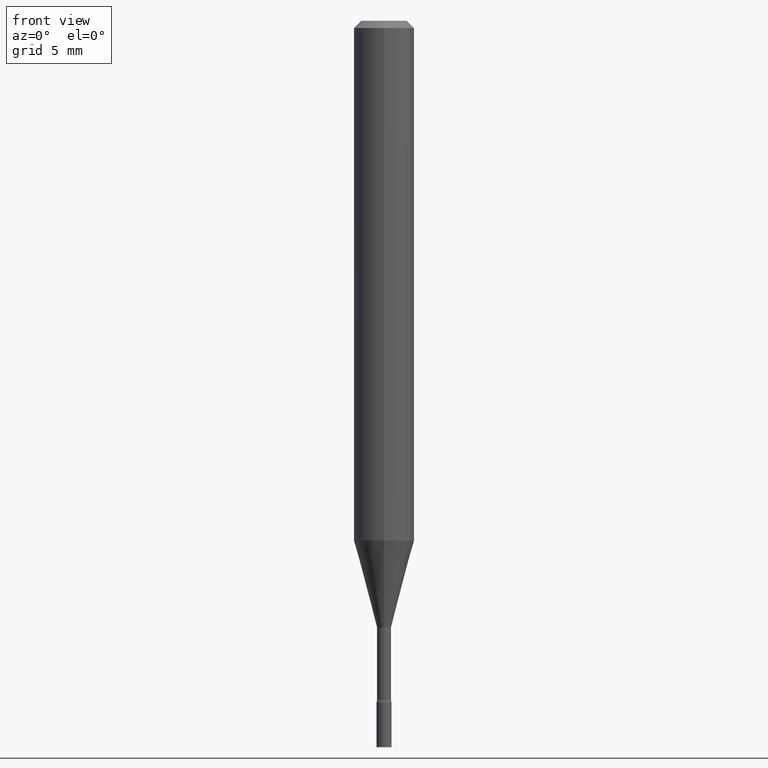
[diagram: clean part render]
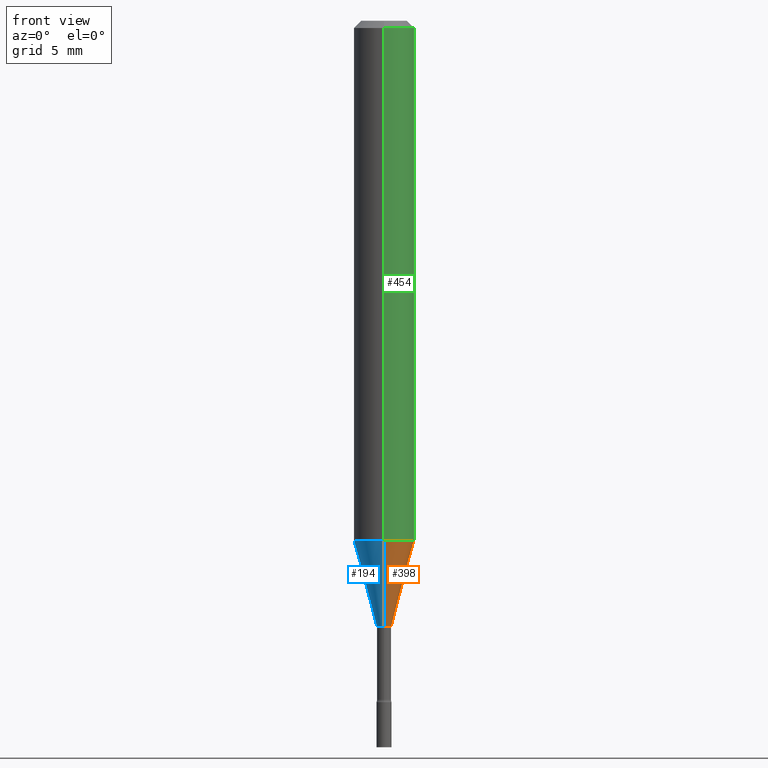
[diagram: same view with three faces highlighted in distinct colors, each labeled with its STEP entity id]
A machine part, front view with three faces highlighted in distinct colors.
Their STEP definitions:

[orange] entity #398 — the highlighted conical surface has half-angle 15 deg.
#9 = CARTESIAN_POINT ( 'NONE',  ( -4.364351673553655384E-16, -0.06250000000000376088, -1.073048163777072794 ) ) ;
#24 = DIRECTION ( 'NONE',  ( -6.982962677686265922E-15, -1.000000000000000000, 4.370956789862821150E-15 ) ) ;
#35 = DIRECTION ( 'NONE',  ( -2.445462235734121314E-29, 3.491490748102966351E-15, 1.000000000000000000 ) ) ;
#42 = CARTESIAN_POINT ( 'NONE',  ( 4.440892098500886486E-16, 0.06249999999999623218, -1.073048163777073238 ) ) ;
#50 = EDGE_CURVE ( 'NONE', #167, #186, #206, .T. ) ;
#66 = AXIS2_PLACEMENT_3D ( 'NONE', #111, #238, #313 ) ;
#75 = CIRCLE ( 'NONE', #288, 0.06250000000000000000 ) ;
#84 = EDGE_LOOP ( 'NONE', ( #506, #161, #163, #282 ) ) ;
#93 = DIRECTION ( 'NONE',  ( -2.445462235734121314E-29, 3.491490748102966351E-15, 1.000000000000000000 ) ) ;
#97 = CARTESIAN_POINT ( 'NONE',  ( -1.051711872097511524E-16, -0.01506111260566834510, -1.250092501787273269 ) ) ;
#111 = CARTESIAN_POINT ( 'NONE',  ( 3.057054004295166531E-29, -4.364686404263155979E-15, -1.250092501787273269 ) ) ;
#117 = VERTEX_POINT ( 'NONE', #42 ) ;
#139 = CARTESIAN_POINT ( 'NONE',  ( 2.755524256971568781E-16, 0.01506111260565961597, -1.250092501787273269 ) ) ;
#143 = CARTESIAN_POINT ( 'NONE',  ( 3.057054004295166531E-29, -4.364686404263155979E-15, -1.250092501787273269 ) ) ;
#161 = ORIENTED_EDGE ( 'NONE', *, *, #228, .T. ) ;
#163 = ORIENTED_EDGE ( 'NONE', *, *, #436, .F. ) ;
#167 = VERTEX_POINT ( 'NONE', #97 ) ;
#177 = EDGE_CURVE ( 'NONE', #167, #214, #274, .T. ) ;
#186 = VERTEX_POINT ( 'NONE', #9 ) ;
#189 = DIRECTION ( 'NONE',  ( 1.839019923739599526E-15, 0.2588190451025248473, 0.9659258262890673130 ) ) ;
#201 = FACE_OUTER_BOUND ( 'NONE', #84, .T. ) ;
#206 = LINE ( 'NONE', #209, #245 ) ;
#209 = CARTESIAN_POINT ( 'NONE',  ( -1.051711872097511524E-16, -0.01506111260566834510, -1.250092501787273269 ) ) ;
#214 = VERTEX_POINT ( 'NONE', #139 ) ;
#223 = LINE ( 'NONE', #460, #440 ) ;
#228 = EDGE_CURVE ( 'NONE', #214, #117, #223, .T. ) ;
#238 = DIRECTION ( 'NONE',  ( -2.445462235734121314E-29, 3.491490748102966351E-15, 1.000000000000000000 ) ) ;
#245 = VECTOR ( 'NONE', #449, 39.37007874015749564 ) ;
#274 = CIRCLE ( 'NONE', #303, 0.01506111260566398054 ) ;
#282 = ORIENTED_EDGE ( 'NONE', *, *, #50, .F. ) ;
#288 = AXIS2_PLACEMENT_3D ( 'NONE', #512, #35, #24 ) ;
#299 = DIRECTION ( 'NONE',  ( -6.982962677686265922E-15, -1.000000000000000000, 0.000000000000000000 ) ) ;
#303 = AXIS2_PLACEMENT_3D ( 'NONE', #143, #93, #299 ) ;
#313 = DIRECTION ( 'NONE',  ( -6.982962677686265922E-15, -1.000000000000000000, 0.000000000000000000 ) ) ;
#398 = ADVANCED_FACE ( 'NONE', ( #201 ), #515, .T. ) ;
#436 = EDGE_CURVE ( 'NONE', #186, #117, #75, .T. ) ;
#440 = VECTOR ( 'NONE', #189, 39.37007874015747433 ) ;
#449 = DIRECTION ( 'NONE',  ( -1.807323732225328562E-15, -0.2588190451025179639, 0.9659258262890689783 ) ) ;
#460 = CARTESIAN_POINT ( 'NONE',  ( 1.070156415442247132E-16, 0.01506111260565961597, -1.250092501787273269 ) ) ;
#506 = ORIENTED_EDGE ( 'NONE', *, *, #177, .T. ) ;
#512 = CARTESIAN_POINT ( 'NONE',  ( 2.624098761640674456E-29, -3.746537736096526862E-15, -1.073048163777073016 ) ) ;
#515 = CONICAL_SURFACE ( 'NONE', #66, 0.01506111260566398054, 0.2617993877991501295 ) ;

[blue] entity #194 — the highlighted conical surface has half-angle 15 deg.
#9 = CARTESIAN_POINT ( 'NONE',  ( -4.364351673553655384E-16, -0.06250000000000376088, -1.073048163777072794 ) ) ;
#29 = AXIS2_PLACEMENT_3D ( 'NONE', #128, #406, #169 ) ;
#34 = EDGE_CURVE ( 'NONE', #214, #167, #302, .T. ) ;
#36 = CONICAL_SURFACE ( 'NONE', #295, 0.01506111260566398054, 0.2617993877991501295 ) ;
#42 = CARTESIAN_POINT ( 'NONE',  ( 4.440892098500886486E-16, 0.06249999999999623218, -1.073048163777073238 ) ) ;
#50 = EDGE_CURVE ( 'NONE', #167, #186, #206, .T. ) ;
#58 = EDGE_LOOP ( 'NONE', ( #190, #85, #321, #257 ) ) ;
#85 = ORIENTED_EDGE ( 'NONE', *, *, #34, .T. ) ;
#90 = DIRECTION ( 'NONE',  ( -6.982962677686265922E-15, -1.000000000000000000, 0.000000000000000000 ) ) ;
#94 = CARTESIAN_POINT ( 'NONE',  ( 3.057054004295166531E-29, -4.364686404263155979E-15, -1.250092501787273269 ) ) ;
#97 = CARTESIAN_POINT ( 'NONE',  ( -1.051711872097511524E-16, -0.01506111260566834510, -1.250092501787273269 ) ) ;
#112 = EDGE_CURVE ( 'NONE', #117, #186, #358, .T. ) ;
#117 = VERTEX_POINT ( 'NONE', #42 ) ;
#128 = CARTESIAN_POINT ( 'NONE',  ( 2.624098761640674456E-29, -3.746537736096526862E-15, -1.073048163777073016 ) ) ;
#139 = CARTESIAN_POINT ( 'NONE',  ( 2.755524256971568781E-16, 0.01506111260565961597, -1.250092501787273269 ) ) ;
#142 = AXIS2_PLACEMENT_3D ( 'NONE', #244, #441, #90 ) ;
#167 = VERTEX_POINT ( 'NONE', #97 ) ;
#169 = DIRECTION ( 'NONE',  ( -6.982962677686265922E-15, -1.000000000000000000, 4.370956789862821150E-15 ) ) ;
#186 = VERTEX_POINT ( 'NONE', #9 ) ;
#189 = DIRECTION ( 'NONE',  ( 1.839019923739599526E-15, 0.2588190451025248473, 0.9659258262890673130 ) ) ;
#190 = ORIENTED_EDGE ( 'NONE', *, *, #228, .F. ) ;
#194 = ADVANCED_FACE ( 'NONE', ( #306 ), #36, .T. ) ;
#206 = LINE ( 'NONE', #209, #245 ) ;
#209 = CARTESIAN_POINT ( 'NONE',  ( -1.051711872097511524E-16, -0.01506111260566834510, -1.250092501787273269 ) ) ;
#214 = VERTEX_POINT ( 'NONE', #139 ) ;
#223 = LINE ( 'NONE', #460, #440 ) ;
#228 = EDGE_CURVE ( 'NONE', #214, #117, #223, .T. ) ;
#244 = CARTESIAN_POINT ( 'NONE',  ( 3.057054004295166531E-29, -4.364686404263155979E-15, -1.250092501787273269 ) ) ;
#245 = VECTOR ( 'NONE', #449, 39.37007874015749564 ) ;
#257 = ORIENTED_EDGE ( 'NONE', *, *, #112, .F. ) ;
#266 = DIRECTION ( 'NONE',  ( -2.445462235734121314E-29, 3.491490748102966351E-15, 1.000000000000000000 ) ) ;
#272 = DIRECTION ( 'NONE',  ( -6.982962677686265922E-15, -1.000000000000000000, 0.000000000000000000 ) ) ;
#295 = AXIS2_PLACEMENT_3D ( 'NONE', #94, #266, #272 ) ;
#302 = CIRCLE ( 'NONE', #142, 0.01506111260566398054 ) ;
#306 = FACE_OUTER_BOUND ( 'NONE', #58, .T. ) ;
#321 = ORIENTED_EDGE ( 'NONE', *, *, #50, .T. ) ;
#358 = CIRCLE ( 'NONE', #29, 0.06250000000000000000 ) ;
#406 = DIRECTION ( 'NONE',  ( -2.445462235734121314E-29, 3.491490748102966351E-15, 1.000000000000000000 ) ) ;
#440 = VECTOR ( 'NONE', #189, 39.37007874015747433 ) ;
#441 = DIRECTION ( 'NONE',  ( -2.445462235734121314E-29, 3.491490748102966351E-15, 1.000000000000000000 ) ) ;
#449 = DIRECTION ( 'NONE',  ( -1.807323732225328562E-15, -0.2588190451025179639, 0.9659258262890689783 ) ) ;
#460 = CARTESIAN_POINT ( 'NONE',  ( 1.070156415442247132E-16, 0.01506111260565961597, -1.250092501787273269 ) ) ;

[green] entity #454 — the highlighted cylindrical surface (edge-blend (fillet) strip) has radius 1.5875 mm, axis along (-0, 0, 1).
#9 = CARTESIAN_POINT ( 'NONE',  ( -4.364351673553655384E-16, -0.06250000000000376088, -1.073048163777072794 ) ) ;
#24 = DIRECTION ( 'NONE',  ( -6.982962677686265922E-15, -1.000000000000000000, 4.370956789862821150E-15 ) ) ;
#35 = DIRECTION ( 'NONE',  ( -2.445462235734121314E-29, 3.491490748102966351E-15, 1.000000000000000000 ) ) ;
#42 = CARTESIAN_POINT ( 'NONE',  ( 4.440892098500886486E-16, 0.06249999999999623218, -1.073048163777073238 ) ) ;
#71 = CARTESIAN_POINT ( 'NONE',  ( 0.000000000000000000, 0.000000000000000000, 0.000000000000000000 ) ) ;
#75 = CIRCLE ( 'NONE', #288, 0.06250000000000000000 ) ;
#88 = VECTOR ( 'NONE', #105, 39.37007874015748143 ) ;
#105 = DIRECTION ( 'NONE',  ( -2.445462235734121314E-29, 3.491490748102966351E-15, 1.000000000000000000 ) ) ;
#117 = VERTEX_POINT ( 'NONE', #42 ) ;
#124 = CARTESIAN_POINT ( 'NONE',  ( 3.668193353601189100E-31, -5.237236122154459880E-17, -0.01500000000000003067 ) ) ;
#134 = ORIENTED_EDGE ( 'NONE', *, *, #384, .F. ) ;
#137 = LINE ( 'NONE', #400, #373 ) ;
#144 = AXIS2_PLACEMENT_3D ( 'NONE', #124, #437, #439 ) ;
#162 = FACE_OUTER_BOUND ( 'NONE', #270, .T. ) ;
#186 = VERTEX_POINT ( 'NONE', #9 ) ;
#196 = DIRECTION ( 'NONE',  ( -2.445462235734121314E-29, 3.491490748102966351E-15, 1.000000000000000000 ) ) ;
#229 = CARTESIAN_POINT ( 'NONE',  ( 4.440892098500889444E-16, 0.06249999999999995143, -0.01500000000000024751 ) ) ;
#231 = AXIS2_PLACEMENT_3D ( 'NONE', #71, #196, #468 ) ;
#247 = VERTEX_POINT ( 'NONE', #229 ) ;
#270 = EDGE_LOOP ( 'NONE', ( #336, #341, #271, #134 ) ) ;
#271 = ORIENTED_EDGE ( 'NONE', *, *, #507, .F. ) ;
#277 = LINE ( 'NONE', #431, #88 ) ;
#288 = AXIS2_PLACEMENT_3D ( 'NONE', #512, #35, #24 ) ;
#289 = VERTEX_POINT ( 'NONE', #351 ) ;
#310 = EDGE_CURVE ( 'NONE', #117, #247, #137, .T. ) ;
#311 = DIRECTION ( 'NONE',  ( -2.445462235734121314E-29, 3.491490748102966351E-15, 1.000000000000000000 ) ) ;
#336 = ORIENTED_EDGE ( 'NONE', *, *, #436, .T. ) ;
#341 = ORIENTED_EDGE ( 'NONE', *, *, #310, .T. ) ;
#351 = CARTESIAN_POINT ( 'NONE',  ( -4.364351673553912750E-16, -0.06250000000000005551, -0.01499999999999981209 ) ) ;
#373 = VECTOR ( 'NONE', #311, 39.37007874015748143 ) ;
#384 = EDGE_CURVE ( 'NONE', #186, #289, #277, .T. ) ;
#400 = CARTESIAN_POINT ( 'NONE',  ( 4.440892098500625669E-16, 0.06250000000000000000, -2.182181717564353969E-16 ) ) ;
#431 = CARTESIAN_POINT ( 'NONE',  ( -4.364351673553916201E-16, -0.06250000000000000000, 2.182181717564353969E-16 ) ) ;
#436 = EDGE_CURVE ( 'NONE', #186, #117, #75, .T. ) ;
#437 = DIRECTION ( 'NONE',  ( -2.445462235734121314E-29, 3.491490748102966351E-15, 1.000000000000000000 ) ) ;
#439 = DIRECTION ( 'NONE',  ( -6.982962677686265922E-15, -1.000000000000000000, 3.483106191921935554E-15 ) ) ;
#454 = ADVANCED_FACE ( 'NONE', ( #162 ), #469, .T. ) ;
#459 = CIRCLE ( 'NONE', #144, 0.06250000000000000000 ) ;
#468 = DIRECTION ( 'NONE',  ( -6.982962677686265922E-15, -1.000000000000000000, 3.491490748102966351E-15 ) ) ;
#469 = CYLINDRICAL_SURFACE ( 'NONE', #231, 0.06250000000000000000 ) ;
#507 = EDGE_CURVE ( 'NONE', #289, #247, #459, .T. ) ;
#512 = CARTESIAN_POINT ( 'NONE',  ( 2.624098761640674456E-29, -3.746537736096526862E-15, -1.073048163777073016 ) ) ;